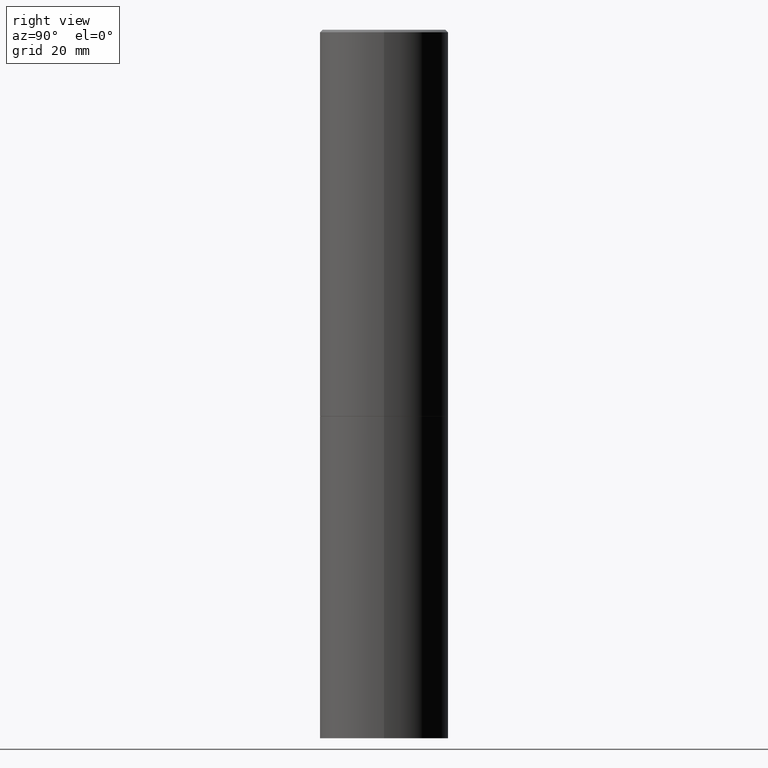
[diagram: clean part render]
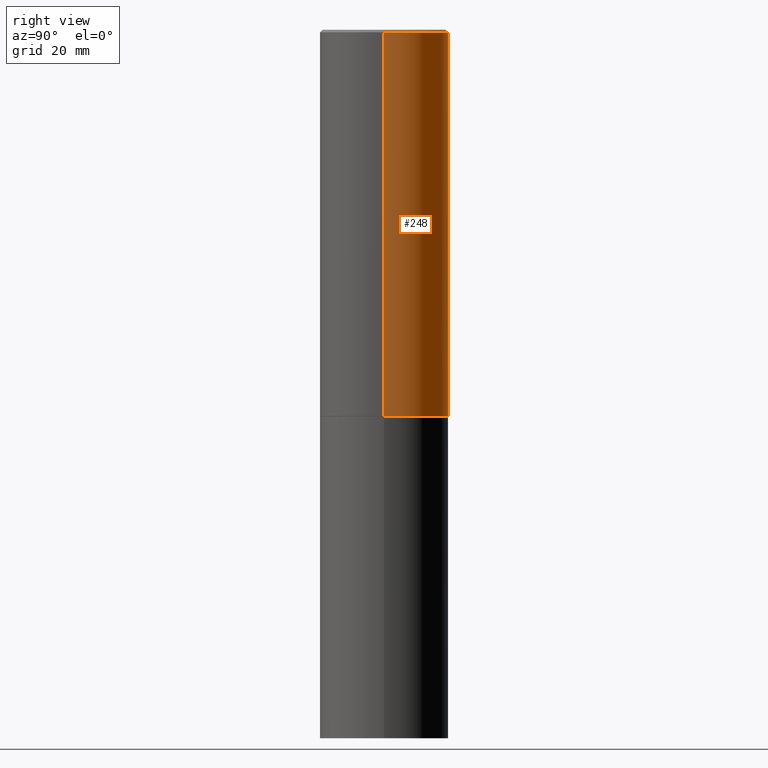
[diagram: same view with one face highlighted and labeled with its STEP entity id]
A machine part, right view. The second image highlights one B-rep face of the part: STEP entity #248.
In plain terms, the highlighted cylindrical surface (partial cylindrical patch) has radius 12.7 mm, axis along (-0, 0, 1).
Its self-contained STEP definition (entity closure, byte-faithful):
#5 = EDGE_CURVE ( 'NONE', #277, #221, #28, .T. ) ;
#19 = ORIENTED_EDGE ( 'NONE', *, *, #219, .F. ) ;
#27 = EDGE_LOOP ( 'NONE', ( #191, #279, #19, #170 ) ) ;
#28 = LINE ( 'NONE', #250, #178 ) ;
#34 = CARTESIAN_POINT ( 'NONE',  ( 4.890937612370306439E-31, -6.982962677686338448E-17, -0.02000000000000013572 ) ) ;
#42 = AXIS2_PLACEMENT_3D ( 'NONE', #317, #208, #183 ) ;
#70 = CARTESIAN_POINT ( 'NONE',  ( 0.4999999999999998335, -3.491481338843132566E-15, 2.438088387897967336E-29 ) ) ;
#74 = DIRECTION ( 'NONE',  ( 1.000000000000000000, -6.982962677686266711E-15, 0.000000000000000000 ) ) ;
#95 = DIRECTION ( 'NONE',  ( -2.445468806185136597E-29, 3.491481338843145583E-15, 1.000000000000000000 ) ) ;
#97 = LINE ( 'NONE', #70, #359 ) ;
#99 = DIRECTION ( 'NONE',  ( -2.445468806185136597E-29, 3.491481338843145583E-15, 1.000000000000000000 ) ) ;
#104 = CARTESIAN_POINT ( 'NONE',  ( -0.5000000000000000000, -1.717677402183226998E-15, -2.999000000000000554 ) ) ;
#108 = FACE_OUTER_BOUND ( 'NONE', #27, .T. ) ;
#120 = CARTESIAN_POINT ( 'NONE',  ( 0.4999999999999997224, -3.500078625662627502E-15, -0.02000000000000013572 ) ) ;
#149 = EDGE_CURVE ( 'NONE', #270, #224, #97, .T. ) ;
#161 = CYLINDRICAL_SURFACE ( 'NONE', #42, 0.4999999999999998335 ) ;
#170 = ORIENTED_EDGE ( 'NONE', *, *, #149, .F. ) ;
#173 = AXIS2_PLACEMENT_3D ( 'NONE', #34, #95, #202 ) ;
#178 = VECTOR ( 'NONE', #325, 39.37007874015748143 ) ;
#183 = DIRECTION ( 'NONE',  ( 1.000000000000000000, -6.982962677686267499E-15, 4.876176775795936353E-29 ) ) ;
#191 = ORIENTED_EDGE ( 'NONE', *, *, #365, .T. ) ;
#202 = DIRECTION ( 'NONE',  ( 1.000000000000000000, -6.982962677686266711E-15, 0.000000000000000000 ) ) ;
#208 = DIRECTION ( 'NONE',  ( -2.445468806185136597E-29, 3.491481338843145583E-15, 1.000000000000000000 ) ) ;
#219 = EDGE_CURVE ( 'NONE', #224, #221, #286, .T. ) ;
#221 = VERTEX_POINT ( 'NONE', #344 ) ;
#224 = VERTEX_POINT ( 'NONE', #120 ) ;
#229 = AXIS2_PLACEMENT_3D ( 'NONE', #234, #99, #74 ) ;
#232 = DIRECTION ( 'NONE',  ( -2.445468806185136877E-29, 3.491481338843145188E-15, 1.000000000000000000 ) ) ;
#234 = CARTESIAN_POINT ( 'NONE',  ( 7.333960949749226429E-29, -1.047095253519059492E-14, -2.999000000000000554 ) ) ;
#248 = ADVANCED_FACE ( 'NONE', ( #108 ), #161, .T. ) ;
#250 = CARTESIAN_POINT ( 'NONE',  ( -0.4999999999999998335, 3.552713678800499746E-15, -2.459467545127452330E-29 ) ) ;
#270 = VERTEX_POINT ( 'NONE', #314 ) ;
#272 = CIRCLE ( 'NONE', #229, 0.5000000000000000000 ) ;
#277 = VERTEX_POINT ( 'NONE', #104 ) ;
#279 = ORIENTED_EDGE ( 'NONE', *, *, #5, .T. ) ;
#286 = CIRCLE ( 'NONE', #173, 0.4999999999999997224 ) ;
#314 = CARTESIAN_POINT ( 'NONE',  ( 0.5000000000000000000, -1.396243387403372828E-14, -2.999000000000000554 ) ) ;
#317 = CARTESIAN_POINT ( 'NONE',  ( 0.000000000000000000, 0.000000000000000000, 0.000000000000000000 ) ) ;
#325 = DIRECTION ( 'NONE',  ( -2.445468806185136877E-29, 3.491481338843145188E-15, 1.000000000000000000 ) ) ;
#344 = CARTESIAN_POINT ( 'NONE',  ( -0.4999999999999997224, 3.421651712066268085E-15, -0.02000000000000013572 ) ) ;
#359 = VECTOR ( 'NONE', #232, 39.37007874015748143 ) ;
#365 = EDGE_CURVE ( 'NONE', #270, #277, #272, .T. ) ;